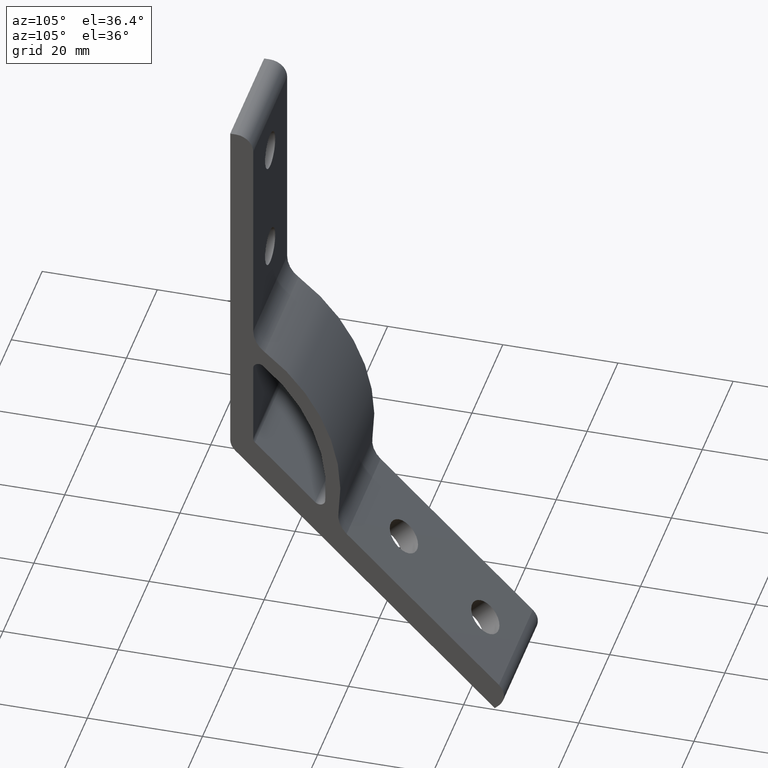
[diagram: clean part render]
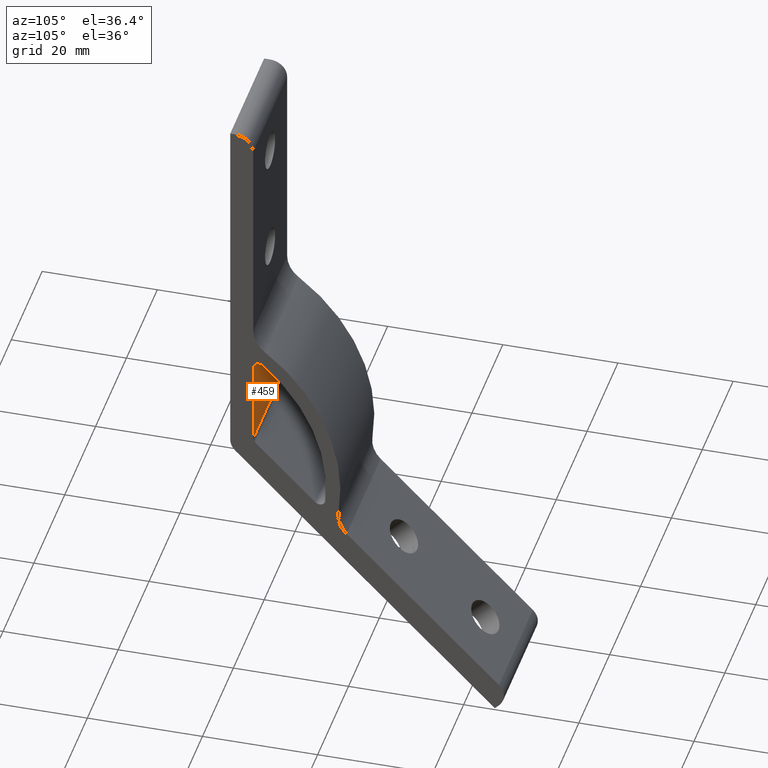
[diagram: same view with one face highlighted and labeled with its STEP entity id]
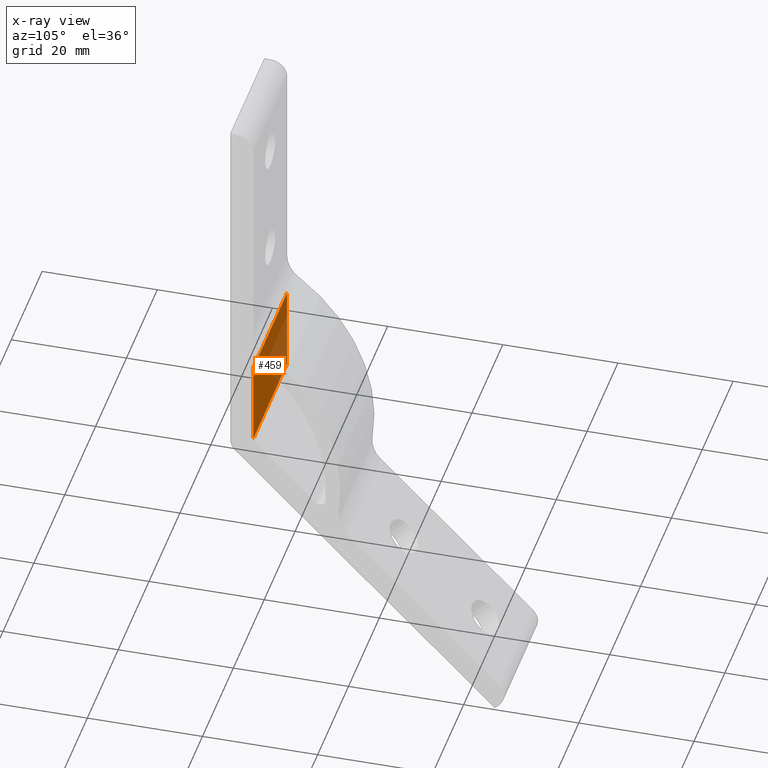
[diagram: x-ray of the same camera — body ghosted, the highlighted face saturated]
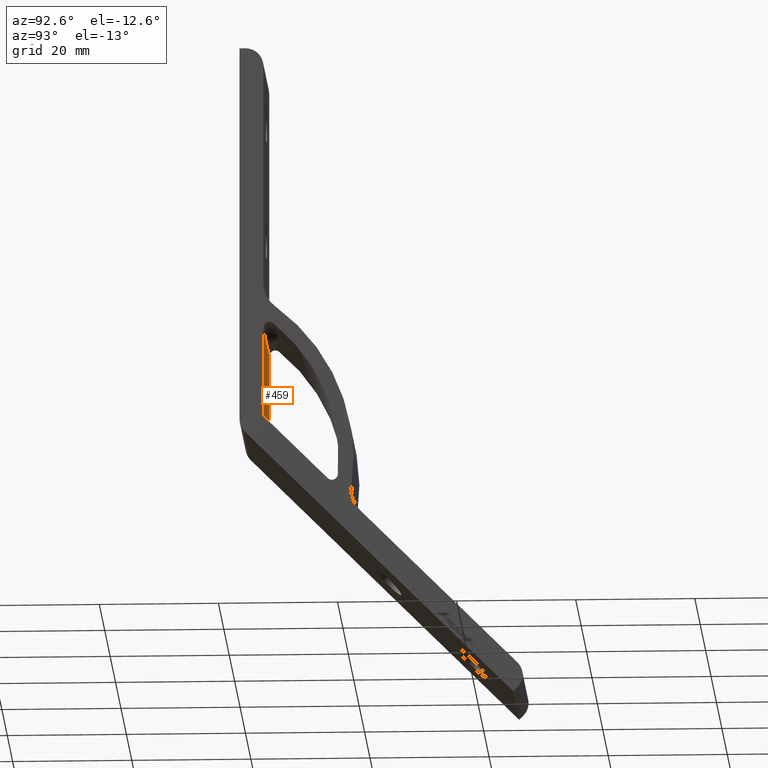
[diagram: same view with one face highlighted and labeled with its STEP entity id]
A machine part, auxiliary view. The second image highlights one B-rep face of the part: STEP entity #459.
The next image is the same camera in x-ray: the body ghosted, the highlighted face saturated — about 30% of this face is hidden behind the body in this view.
A second angle (auxiliary view) of the same face is appended — the face is thin or edge-on in the first view.
In plain terms, the highlighted planar face has unit normal (0, -1, 0).
Its self-contained STEP definition (entity closure, byte-faithful):
#34=PLANE('',#512);
#57=FACE_OUTER_BOUND('',#92,.T.);
#92=EDGE_LOOP('',(#387,#388,#389,#390));
#111=LINE('',#701,#145);
#125=LINE('',#764,#159);
#127=LINE('',#771,#161);
#129=LINE('',#776,#163);
#145=VECTOR('',#555,14.7330097743143);
#159=VECTOR('',#627,22.);
#161=VECTOR('',#635,22.);
#163=VECTOR('',#641,14.7330097743143);
#214=VERTEX_POINT('',#699);
#215=VERTEX_POINT('',#700);
#235=VERTEX_POINT('',#762);
#237=VERTEX_POINT('',#770);
#260=EDGE_CURVE('',#214,#215,#111,.T.);
#290=EDGE_CURVE('',#235,#214,#125,.T.);
#293=EDGE_CURVE('',#215,#237,#127,.T.);
#296=EDGE_CURVE('',#237,#235,#129,.T.);
#387=ORIENTED_EDGE('',*,*,#290,.F.);
#388=ORIENTED_EDGE('',*,*,#296,.F.);
#389=ORIENTED_EDGE('',*,*,#293,.F.);
#390=ORIENTED_EDGE('',*,*,#260,.F.);
#459=ADVANCED_FACE('',(#57),#34,.F.);
#512=AXIS2_PLACEMENT_3D('',#775,#639,#640);
#555=DIRECTION('',(0.,0.,-1.));
#627=DIRECTION('',(-1.,0.,0.));
#635=DIRECTION('',(1.,0.,0.));
#639=DIRECTION('center_axis',(0.,-1.,0.));
#640=DIRECTION('ref_axis',(0.,0.,-1.));
#641=DIRECTION('',(0.,0.,1.));
#699=CARTESIAN_POINT('',(0.,4.00000000000001,-48.0670016962954));
#700=CARTESIAN_POINT('',(0.,4.00000000000001,-62.8000114706097));
#701=CARTESIAN_POINT('',(0.,4.00000000000001,-52.4543378392636));
#762=CARTESIAN_POINT('',(22.,4.00000000000001,-48.0670016962954));
#764=CARTESIAN_POINT('',(0.,4.00000000000001,-48.0670016962954));
#770=CARTESIAN_POINT('',(22.,4.00000000000001,-62.8000114706097));
#771=CARTESIAN_POINT('',(0.,4.00000000000001,-62.8000114706097));
#775=CARTESIAN_POINT('Origin',(0.,4.00000000000001,-46.0259720347882));
#776=CARTESIAN_POINT('',(22.,4.00000000000001,-52.4543378392636));